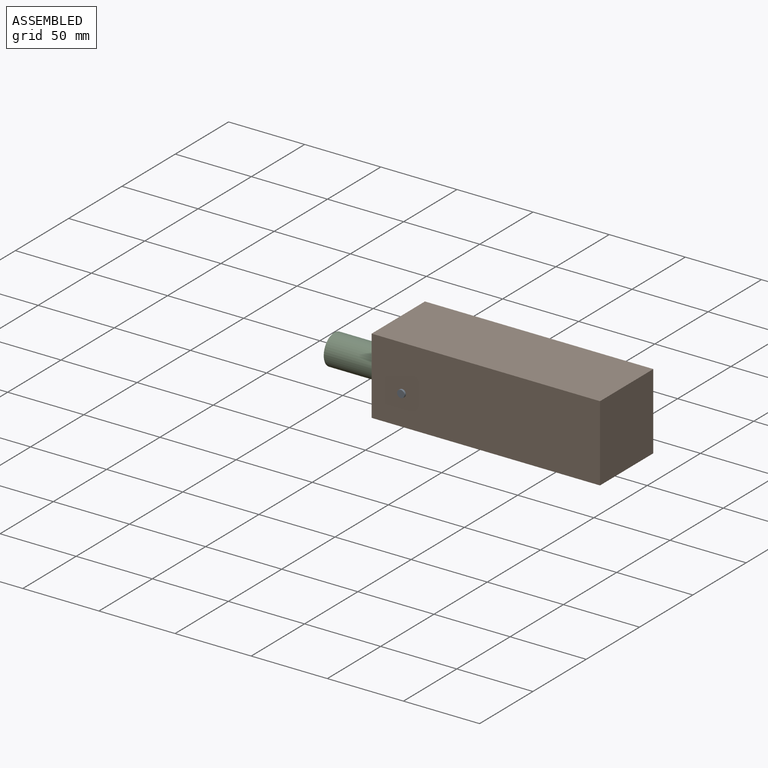
[diagram: assembled view]
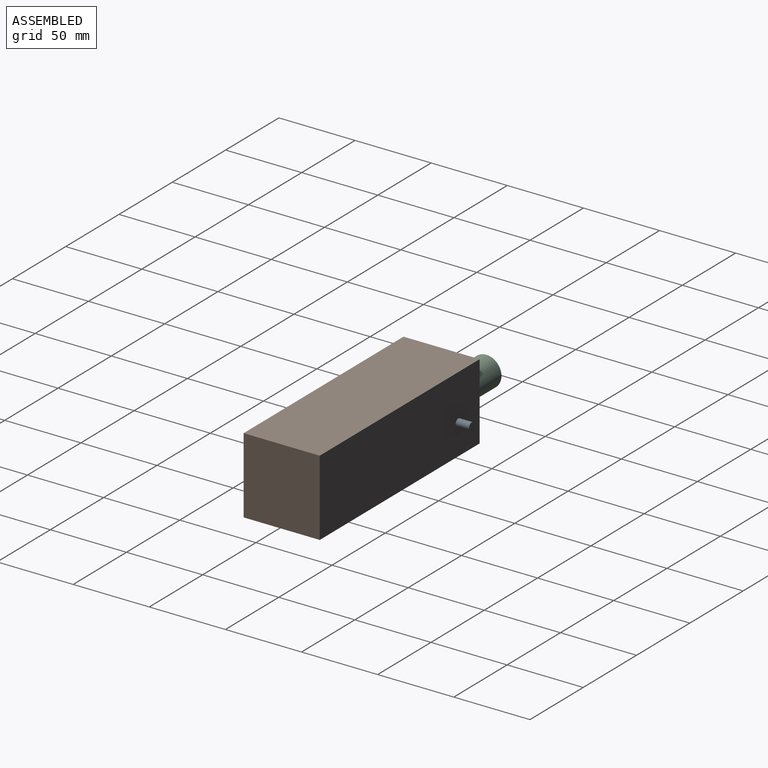
[diagram: assembled view, second angle]
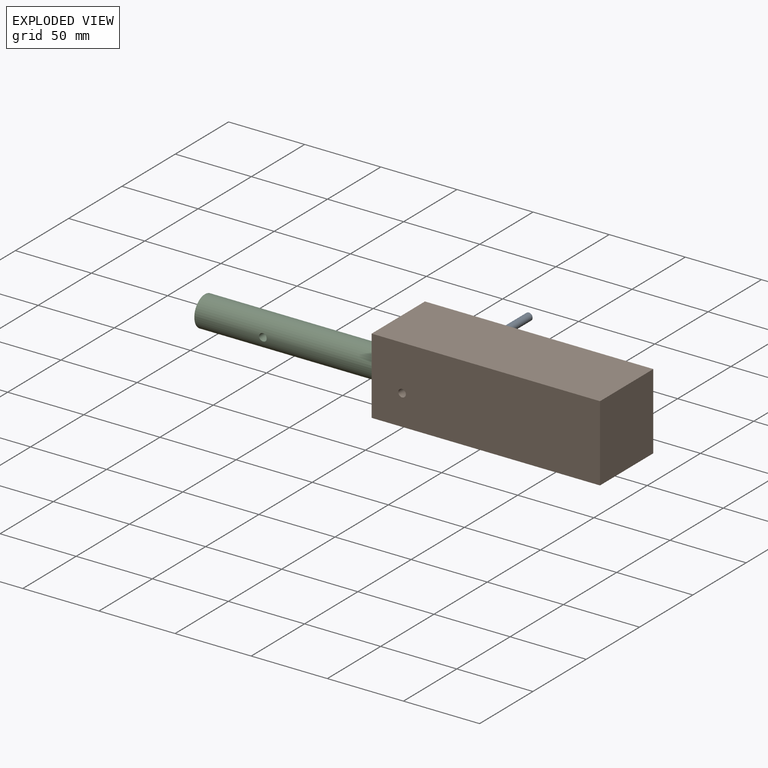
[diagram: exploded view]
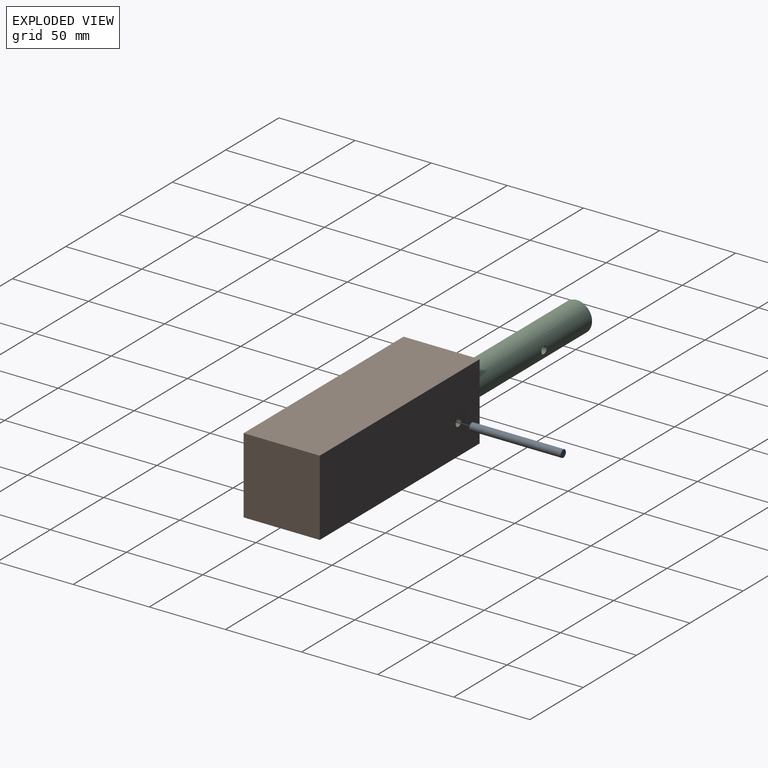
[diagram: exploded view, second angle]
ASSEMBLY  parts=3 mates=2
PART A: 3 faces, bbox 4.9x60x4.9 mm
  f0: cylinder r=2.45mm len=60mm, axis (0,1,0), area 923.6mm2, adj f1,f2
  f1: plane 4.9x4.9mm, normal (0,-1,0), area 18.9mm2, adj f0
  f2: plane 4.9x4.9mm, normal (0,1,0), area 18.9mm2, adj f0
PART B: 10 faces, bbox 150x50x50 mm
  f0: cylinder r=2.5mm len=15.32mm, axis (0,-1,0), area 238.1mm2, adj f6,f8
  f1: plane 150x50mm, normal (0,0,1), area 7500mm2, adj f2,f4,f5,f6
  f2: plane 50x50mm, normal (-1,0,0), area 2185.8mm2, adj f1,f3,f5,f6,f8
  f3: plane 150x50mm, normal (0,0,-1), area 7500mm2, adj f2,f4,f5,f6
  f4: plane 50x50mm, normal (1,0,0), area 2500mm2, adj f1,f3,f5,f6
  f5: plane 150x50mm, normal (0,-1,0), area 7480.4mm2, adj f1,f2,f3,f4,f7
  f6: plane 150x50mm, normal (0,1,0), area 7480.4mm2, adj f0,f1,f2,f3,f4
  f7: cylinder r=2.5mm len=15.32mm, axis (0,-1,0), area 238.1mm2, adj f5,f8
  f8: cylinder r=10mm len=100mm, axis (-1,0,0), area 6243.6mm2, adj f0,f2,f7,f9
  f9: plane 20x20mm, normal (-1,0,0), area 314.2mm2, adj f8
PART C: 4 faces, bbox 120x19.8x19.8 mm
  f0: cylinder r=9.9mm len=120mm, axis (-1,0,0), area 7424.9mm2, adj f1,f2,f3
  f1: plane 19.8x19.8mm, normal (1,0,0), area 307.9mm2, adj f0
  f2: plane 19.8x19.8mm, normal (-1,0,0), area 307.9mm2, adj f0
  f3: cylinder r=2.5mm len=19.8mm, axis (0,-1,0), area 306mm2, adj f0
PLACE A t=(-47.01,-161.15,231.9)mm
PLACE B rot(axis=(1,0,0),180deg) t=(-20.24,-219.95,261.9)mm
PLACE C rot(axis=(1,0,0),180deg) t=(-84.04,-194.95,231.9)mm
MATE slider C.f0 <-> B.f8  axis (-1,0,0) through (10.96,-194.95,231.9)mm
MATE slider B.f0 <-> A.f0  axis (0,1,0) through (-47.01,-169.95,231.9)mm
